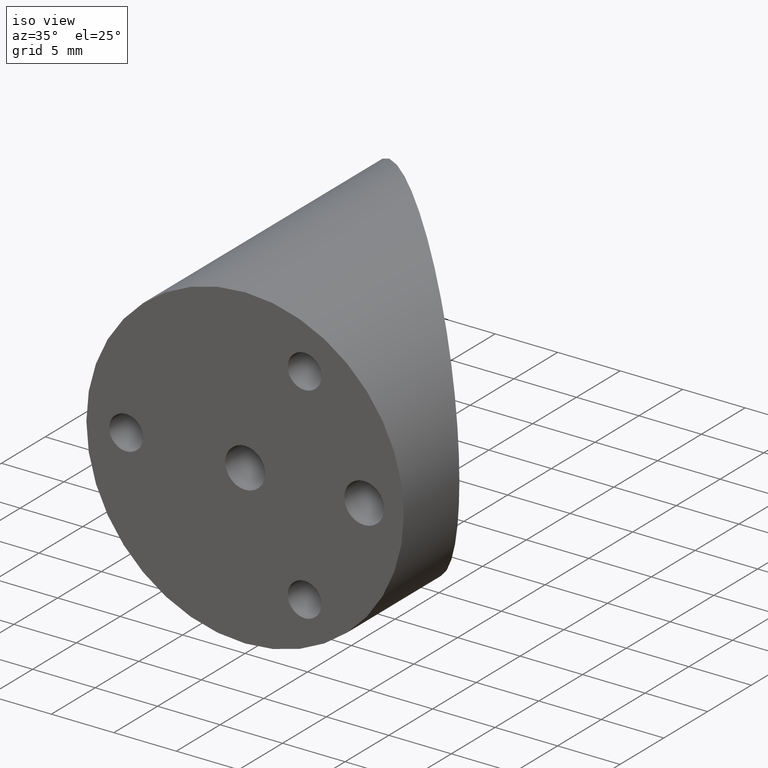
[diagram: clean part render]
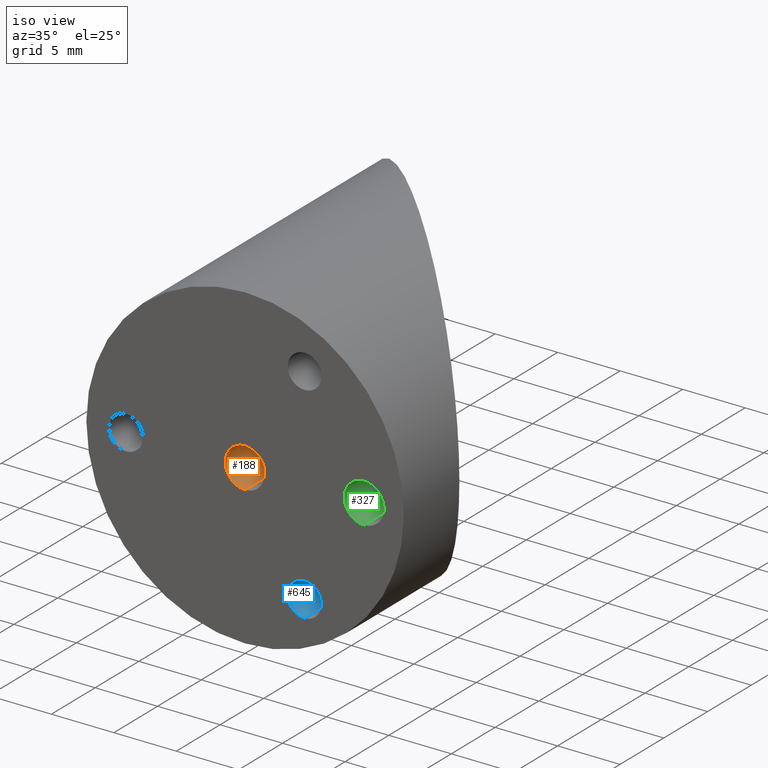
[diagram: same view with three faces highlighted in distinct colors, each labeled with its STEP entity id]
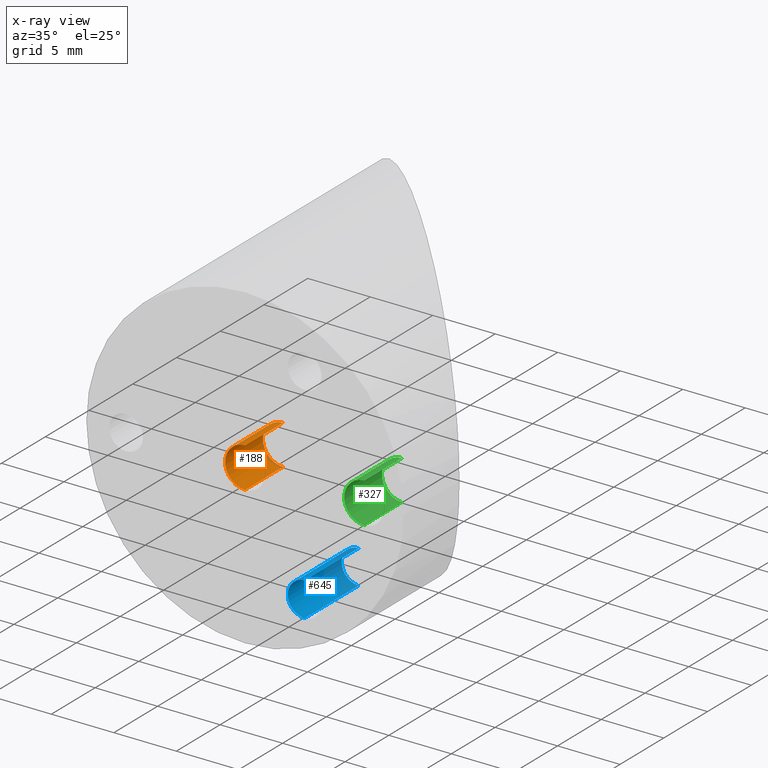
[diagram: x-ray of the same camera — body ghosted, the three highlighted faces saturated]
A machine part, iso view with three faces highlighted in distinct colors.
The next image is the same camera in x-ray (body ghosted, the three faces saturated) — at least one of them is partly hidden behind the body in this view.
Their STEP definitions:

[orange] entity #188 — the highlighted cylindrical surface (edge-blend (fillet) strip) has radius 1.594 mm, axis along (-0, -1, -0).
#8 = CARTESIAN_POINT ( 'NONE',  ( 1.952086997840879895E-16, 0.0000000000000000000, 1.593999999999998973 ) ) ;
#24 = CARTESIAN_POINT ( 'NONE',  ( 1.952086997840879648E-16, 4.320000000000000284, 1.593999999999998751 ) ) ;
#35 = VECTOR ( 'NONE', #215, 1000.000000000000000 ) ;
#154 = EDGE_CURVE ( 'NONE', #430, #712, #687, .T. ) ;
#185 = CIRCLE ( 'NONE', #762, 1.593999999999999417 ) ;
#188 = ADVANCED_FACE ( 'NONE', ( #239 ), #210, .F. ) ;
#195 = CARTESIAN_POINT ( 'NONE',  ( 0.0000000000000000000, 7.960204194457993925E-19, -1.593999999999999417 ) ) ;
#199 = CARTESIAN_POINT ( 'NONE',  ( 0.0000000000000000000, 4.320000000000000284, -1.593999999999998751 ) ) ;
#210 = CYLINDRICAL_SURFACE ( 'NONE', #337, 1.593999999999998973 ) ;
#215 = DIRECTION ( 'NONE',  ( -0.0000000000000000000, -1.000000000000000000, -0.0000000000000000000 ) ) ;
#233 = DIRECTION ( 'NONE',  ( -0.0000000000000000000, -1.000000000000000000, -0.0000000000000000000 ) ) ;
#239 = FACE_OUTER_BOUND ( 'NONE', #587, .T. ) ;
#250 = EDGE_CURVE ( 'NONE', #422, #430, #598, .T. ) ;
#284 = CARTESIAN_POINT ( 'NONE',  ( 1.952086997840880388E-16, 7.960204194457993925E-19, 1.593999999999999417 ) ) ;
#287 = DIRECTION ( 'NONE',  ( 0.0000000000000000000, 0.0000000000000000000, -1.000000000000000000 ) ) ;
#288 = DIRECTION ( 'NONE',  ( -0.0000000000000000000, -1.000000000000000000, -0.0000000000000000000 ) ) ;
#326 = EDGE_CURVE ( 'NONE', #440, #712, #185, .T. ) ;
#337 = AXIS2_PLACEMENT_3D ( 'NONE', #592, #348, #600 ) ;
#348 = DIRECTION ( 'NONE',  ( -0.0000000000000000000, -1.000000000000000000, -0.0000000000000000000 ) ) ;
#412 = ORIENTED_EDGE ( 'NONE', *, *, #326, .T. ) ;
#422 = VERTEX_POINT ( 'NONE', #24 ) ;
#430 = VERTEX_POINT ( 'NONE', #199 ) ;
#440 = VERTEX_POINT ( 'NONE', #284 ) ;
#457 = ORIENTED_EDGE ( 'NONE', *, *, #664, .T. ) ;
#461 = DIRECTION ( 'NONE',  ( -0.0000000000000000000, -1.000000000000000000, -0.0000000000000000000 ) ) ;
#533 = DIRECTION ( 'NONE',  ( 0.0000000000000000000, 0.0000000000000000000, -1.000000000000000000 ) ) ;
#547 = AXIS2_PLACEMENT_3D ( 'NONE', #729, #461, #533 ) ;
#587 = EDGE_LOOP ( 'NONE', ( #724, #457, #412, #642 ) ) ;
#592 = CARTESIAN_POINT ( 'NONE',  ( 0.0000000000000000000, 0.0000000000000000000, 0.0000000000000000000 ) ) ;
#598 = CIRCLE ( 'NONE', #547, 1.593999999999998751 ) ;
#600 = DIRECTION ( 'NONE',  ( 0.0000000000000000000, 0.0000000000000000000, -1.000000000000000000 ) ) ;
#605 = CARTESIAN_POINT ( 'NONE',  ( 0.0000000000000000000, 7.960204194457993925E-19, 0.0000000000000000000 ) ) ;
#639 = LINE ( 'NONE', #8, #742 ) ;
#642 = ORIENTED_EDGE ( 'NONE', *, *, #154, .F. ) ;
#664 = EDGE_CURVE ( 'NONE', #422, #440, #639, .T. ) ;
#687 = LINE ( 'NONE', #715, #35 ) ;
#712 = VERTEX_POINT ( 'NONE', #195 ) ;
#715 = CARTESIAN_POINT ( 'NONE',  ( 0.0000000000000000000, 0.0000000000000000000, -1.593999999999998973 ) ) ;
#724 = ORIENTED_EDGE ( 'NONE', *, *, #250, .F. ) ;
#729 = CARTESIAN_POINT ( 'NONE',  ( 0.0000000000000000000, 4.320000000000000284, 0.0000000000000000000 ) ) ;
#742 = VECTOR ( 'NONE', #288, 1000.000000000000000 ) ;
#762 = AXIS2_PLACEMENT_3D ( 'NONE', #605, #233, #287 ) ;

[blue] entity #645 — the highlighted cylindrical surface (edge-blend (fillet) strip) has radius 1.3525 mm, axis along (-0, -1, -0).
#10 = AXIS2_PLACEMENT_3D ( 'NONE', #208, #205, #641 ) ;
#27 = LINE ( 'NONE', #74, #583 ) ;
#43 = CARTESIAN_POINT ( 'NONE',  ( 4.762500000000009948, 6.169999999999999929, -8.248891971046772298 ) ) ;
#49 = CARTESIAN_POINT ( 'NONE',  ( 4.762500000000009948, 2.721777511104993564E-17, -6.896341971046772379 ) ) ;
#51 = CARTESIAN_POINT ( 'NONE',  ( 4.762500000000009948, 6.169999999999999929, -6.896341971046773267 ) ) ;
#65 = CIRCLE ( 'NONE', #754, 1.352549999999997477 ) ;
#74 = CARTESIAN_POINT ( 'NONE',  ( 4.762500000000009948, 0.0000000000000000000, -9.601441971046771329 ) ) ;
#82 = ORIENTED_EDGE ( 'NONE', *, *, #491, .T. ) ;
#105 = FACE_OUTER_BOUND ( 'NONE', #577, .T. ) ;
#108 = CARTESIAN_POINT ( 'NONE',  ( 4.762500000000009948, 0.0000000000000000000, -6.896341971046772379 ) ) ;
#111 = EDGE_CURVE ( 'NONE', #192, #285, #447, .T. ) ;
#192 = VERTEX_POINT ( 'NONE', #49 ) ;
#201 = LINE ( 'NONE', #108, #426 ) ;
#205 = DIRECTION ( 'NONE',  ( -0.0000000000000000000, -1.000000000000000000, -0.0000000000000000000 ) ) ;
#208 = CARTESIAN_POINT ( 'NONE',  ( 4.762500000000009948, 2.721777511104993564E-17, -8.248891971046772298 ) ) ;
#221 = CYLINDRICAL_SURFACE ( 'NONE', #624, 1.352549999999999253 ) ;
#224 = DIRECTION ( 'NONE',  ( -0.0000000000000000000, -1.000000000000000000, -0.0000000000000000000 ) ) ;
#225 = ORIENTED_EDGE ( 'NONE', *, *, #463, .F. ) ;
#227 = CARTESIAN_POINT ( 'NONE',  ( 4.762500000000009948, 2.721777511104993564E-17, -9.601441971046771329 ) ) ;
#247 = ORIENTED_EDGE ( 'NONE', *, *, #111, .T. ) ;
#273 = DIRECTION ( 'NONE',  ( -0.0000000000000000000, -1.000000000000000000, -0.0000000000000000000 ) ) ;
#285 = VERTEX_POINT ( 'NONE', #227 ) ;
#355 = EDGE_CURVE ( 'NONE', #749, #285, #27, .T. ) ;
#413 = DIRECTION ( 'NONE',  ( 0.0000000000000000000, 0.0000000000000000000, -1.000000000000000000 ) ) ;
#426 = VECTOR ( 'NONE', #273, 1000.000000000000000 ) ;
#437 = CARTESIAN_POINT ( 'NONE',  ( 4.762500000000009948, 6.169999999999999929, -9.601441971046769552 ) ) ;
#447 = CIRCLE ( 'NONE', #10, 1.352549999999999253 ) ;
#463 = EDGE_CURVE ( 'NONE', #516, #749, #65, .T. ) ;
#491 = EDGE_CURVE ( 'NONE', #516, #192, #201, .T. ) ;
#516 = VERTEX_POINT ( 'NONE', #51 ) ;
#534 = CARTESIAN_POINT ( 'NONE',  ( 4.762500000000009948, 0.0000000000000000000, -8.248891971046772298 ) ) ;
#543 = DIRECTION ( 'NONE',  ( -0.0000000000000000000, -1.000000000000000000, -0.0000000000000000000 ) ) ;
#577 = EDGE_LOOP ( 'NONE', ( #225, #82, #247, #614 ) ) ;
#583 = VECTOR ( 'NONE', #635, 1000.000000000000000 ) ;
#614 = ORIENTED_EDGE ( 'NONE', *, *, #355, .F. ) ;
#624 = AXIS2_PLACEMENT_3D ( 'NONE', #534, #543, #413 ) ;
#635 = DIRECTION ( 'NONE',  ( -0.0000000000000000000, -1.000000000000000000, -0.0000000000000000000 ) ) ;
#641 = DIRECTION ( 'NONE',  ( 0.0000000000000000000, 0.0000000000000000000, -1.000000000000000000 ) ) ;
#645 = ADVANCED_FACE ( 'NONE', ( #105 ), #221, .F. ) ;
#657 = DIRECTION ( 'NONE',  ( 0.0000000000000000000, 0.0000000000000000000, -1.000000000000000000 ) ) ;
#749 = VERTEX_POINT ( 'NONE', #437 ) ;
#754 = AXIS2_PLACEMENT_3D ( 'NONE', #43, #224, #657 ) ;

[green] entity #327 — the highlighted cylindrical surface (edge-blend (fillet) strip) has radius 1.594 mm, axis along (-0, -1, -0).
#28 = LINE ( 'NONE', #336, #106 ) ;
#40 = DIRECTION ( 'NONE',  ( -0.0000000000000000000, -1.000000000000000000, -0.0000000000000000000 ) ) ;
#50 = DIRECTION ( 'NONE',  ( -0.0000000000000000000, -1.000000000000000000, -0.0000000000000000000 ) ) ;
#66 = CYLINDRICAL_SURFACE ( 'NONE', #487, 1.593999999999998973 ) ;
#72 = VERTEX_POINT ( 'NONE', #634 ) ;
#78 = FACE_OUTER_BOUND ( 'NONE', #194, .T. ) ;
#91 = VERTEX_POINT ( 'NONE', #570 ) ;
#98 = VERTEX_POINT ( 'NONE', #519 ) ;
#106 = VECTOR ( 'NONE', #168, 1000.000000000000000 ) ;
#113 = DIRECTION ( 'NONE',  ( -0.0000000000000000000, -1.000000000000000000, -0.0000000000000000000 ) ) ;
#119 = CIRCLE ( 'NONE', #383, 1.593999999999999861 ) ;
#168 = DIRECTION ( 'NONE',  ( -0.0000000000000000000, -1.000000000000000000, -0.0000000000000000000 ) ) ;
#181 = ORIENTED_EDGE ( 'NONE', *, *, #609, .T. ) ;
#194 = EDGE_LOOP ( 'NONE', ( #556, #790, #181, #557 ) ) ;
#259 = VECTOR ( 'NONE', #40, 1000.000000000000000 ) ;
#297 = EDGE_CURVE ( 'NONE', #72, #98, #28, .T. ) ;
#327 = ADVANCED_FACE ( 'NONE', ( #78 ), #66, .F. ) ;
#336 = CARTESIAN_POINT ( 'NONE',  ( 9.525000000000000355, 0.0000000000000000000, 1.593999999999998973 ) ) ;
#351 = CARTESIAN_POINT ( 'NONE',  ( 9.525000000000000355, 0.0000000000000000000, 0.0000000000000000000 ) ) ;
#362 = CIRCLE ( 'NONE', #684, 1.593999999999998085 ) ;
#383 = AXIS2_PLACEMENT_3D ( 'NONE', #415, #113, #745 ) ;
#415 = CARTESIAN_POINT ( 'NONE',  ( 9.525000000000000355, 7.960204194457993925E-19, 0.0000000000000000000 ) ) ;
#449 = VERTEX_POINT ( 'NONE', #622 ) ;
#465 = CARTESIAN_POINT ( 'NONE',  ( 9.525000000000000355, 0.0000000000000000000, -1.593999999999998973 ) ) ;
#473 = CARTESIAN_POINT ( 'NONE',  ( 9.525000000000000355, 4.320000000000000284, 0.0000000000000000000 ) ) ;
#474 = DIRECTION ( 'NONE',  ( -0.0000000000000000000, -1.000000000000000000, -0.0000000000000000000 ) ) ;
#487 = AXIS2_PLACEMENT_3D ( 'NONE', #351, #474, #792 ) ;
#500 = EDGE_CURVE ( 'NONE', #72, #91, #362, .T. ) ;
#519 = CARTESIAN_POINT ( 'NONE',  ( 9.525000000000000355, 7.960204194457993925E-19, 1.593999999999999639 ) ) ;
#529 = DIRECTION ( 'NONE',  ( 0.0000000000000000000, 0.0000000000000000000, -1.000000000000000000 ) ) ;
#532 = EDGE_CURVE ( 'NONE', #91, #449, #565, .T. ) ;
#556 = ORIENTED_EDGE ( 'NONE', *, *, #500, .F. ) ;
#557 = ORIENTED_EDGE ( 'NONE', *, *, #532, .F. ) ;
#565 = LINE ( 'NONE', #465, #259 ) ;
#570 = CARTESIAN_POINT ( 'NONE',  ( 9.525000000000000355, 4.320000000000000284, -1.593999999999998085 ) ) ;
#609 = EDGE_CURVE ( 'NONE', #98, #449, #119, .T. ) ;
#622 = CARTESIAN_POINT ( 'NONE',  ( 9.525000000000000355, 7.960204194457993925E-19, -1.593999999999999861 ) ) ;
#634 = CARTESIAN_POINT ( 'NONE',  ( 9.525000000000000355, 4.320000000000000284, 1.593999999999998085 ) ) ;
#684 = AXIS2_PLACEMENT_3D ( 'NONE', #473, #50, #529 ) ;
#745 = DIRECTION ( 'NONE',  ( 0.0000000000000000000, 0.0000000000000000000, -1.000000000000000000 ) ) ;
#790 = ORIENTED_EDGE ( 'NONE', *, *, #297, .T. ) ;
#792 = DIRECTION ( 'NONE',  ( 0.0000000000000000000, 0.0000000000000000000, -1.000000000000000000 ) ) ;